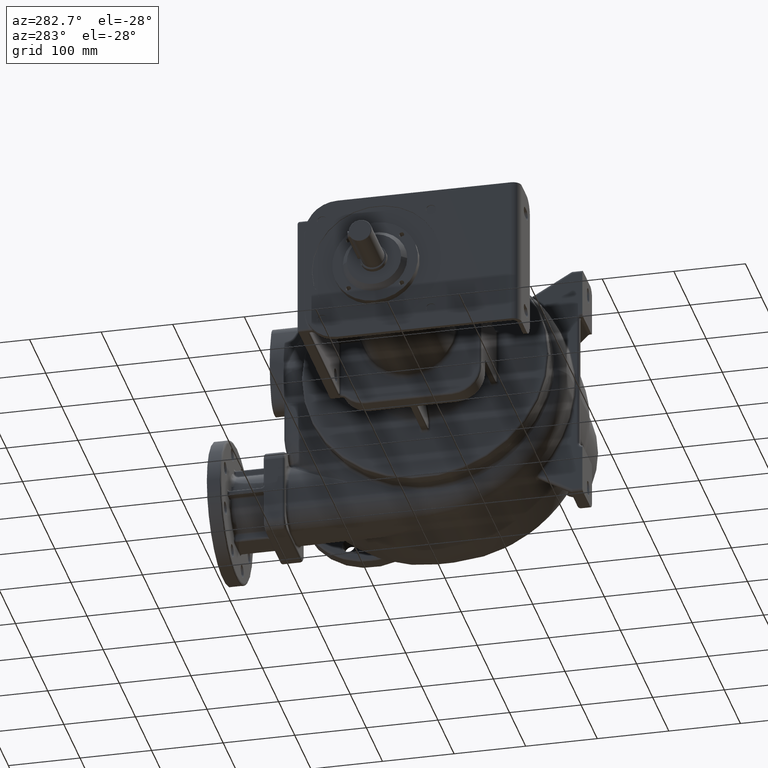
[diagram: clean part render]
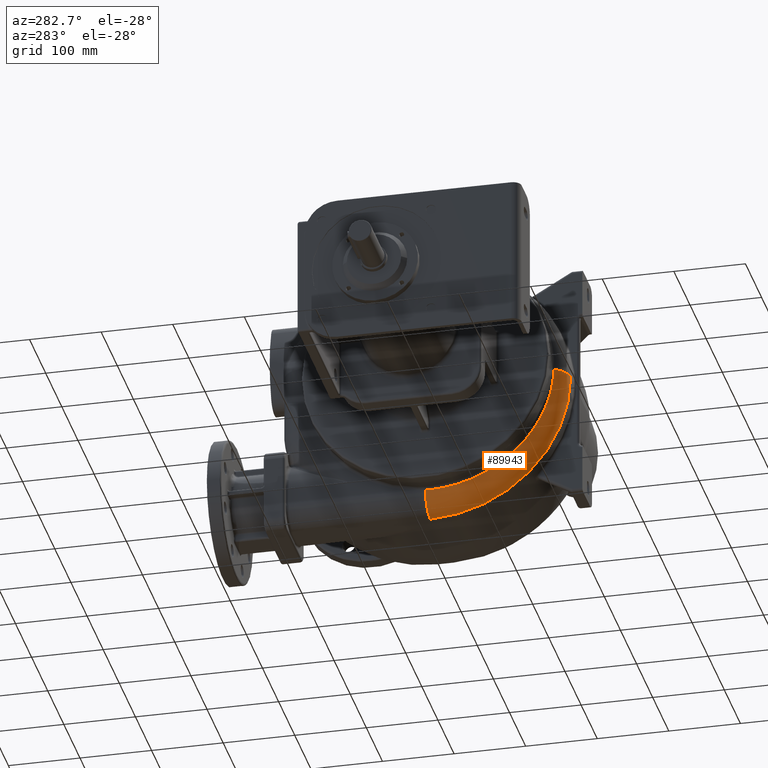
[diagram: same view with one face highlighted and labeled with its STEP entity id]
A machine part, auxiliary view. The second image highlights one B-rep face of the part: STEP entity #89943.
In plain terms, the highlighted toroidal blend (fillet) surface has major radius 166 mm and minor (blend) radius 30 mm.
Its self-contained STEP definition (entity closure, byte-faithful):
#5757=CARTESIAN_POINT('',(-8.999042080502E1,2.07E2,-1.737580632809E2));
#28155=CARTESIAN_POINT('',(-6.E1,4.1E1,-7.E0));
#28156=DIRECTION('',(0.E0,0.E0,1.E0));
#28157=DIRECTION('',(-8.994452377361E-1,-4.370334819139E-1,0.E0));
#28158=AXIS2_PLACEMENT_3D('',#28155,#28156,#28157);
#28160=CARTESIAN_POINT('',(-8.999042080502E1,2.07E2,-1.737580632809E2));
#28161=CARTESIAN_POINT('',(-8.998972283097E1,2.062231979715E2,
-1.737856764537E2));
#28162=CARTESIAN_POINT('',(-8.998824076054E1,2.046692257495E2,
-1.738304347924E2));
#28163=CARTESIAN_POINT('',(-8.998575000194E1,2.023375572966E2,
-1.738661567715E2));
#28164=CARTESIAN_POINT('',(-8.998390494195E1,2.007829372595E2,
-1.738690231923E2));
#28165=CARTESIAN_POINT('',(-8.998293474390E1,2.000056494918E2,
-1.738652192678E2));
#28167=CARTESIAN_POINT('',(-8.998293474390E1,2.000056494918E2,
-1.738652192678E2));
#28168=CARTESIAN_POINT('',(-8.998160868283E1,1.989431115503E2,
-1.738600065507E2));
#28169=CARTESIAN_POINT('',(-8.997878033822E1,1.968178898113E2,
-1.738299718109E2));
#28170=CARTESIAN_POINT('',(-8.997397978859E1,1.936305576913E2,
-1.737261443945E2));
#28171=CARTESIAN_POINT('',(-8.996859679774E1,1.904450934095E2,
-1.735636038834E2));
#28172=CARTESIAN_POINT('',(-8.996260652730E1,1.872627482284E2,
-1.733424189885E2));
#28173=CARTESIAN_POINT('',(-8.995598587847E1,1.840848036553E2,
-1.730626658132E2));
#28174=CARTESIAN_POINT('',(-8.994871374601E1,1.809125346424E2,
-1.727244274600E2));
#28175=CARTESIAN_POINT('',(-8.994077151337E1,1.777472135407E2,
-1.723277953281E2));
#28176=CARTESIAN_POINT('',(-8.993214460511E1,1.745901340602E2,
-1.718728655327E2));
#28177=CARTESIAN_POINT('',(-8.992281055131E1,1.714421727190E2,
-1.713598239776E2));
#28178=CARTESIAN_POINT('',(-8.991274667879E1,1.683041887809E2,
-1.707888524805E2));
#28179=CARTESIAN_POINT('',(-8.990193139507E1,1.651770207493E2,
-1.701601158566E2));
#28180=CARTESIAN_POINT('',(-8.989034481162E1,1.620616389395E2,
-1.694737970246E2));
#28181=CARTESIAN_POINT('',(-8.987796946461E1,1.589591669959E2,
-1.687301160352E2));
#28182=CARTESIAN_POINT('',(-8.986479001034E1,1.558706967561E2,
-1.679292953106E2));
#28183=CARTESIAN_POINT('',(-8.985079389653E1,1.527973280857E2,
-1.670715668378E2));
#28184=CARTESIAN_POINT('',(-8.983596093345E1,1.497402009437E2,
-1.661572937796E2));
#28185=CARTESIAN_POINT('',(-8.982027264927E1,1.467004472173E2,
-1.651868472473E2));
#28186=CARTESIAN_POINT('',(-8.980371304781E1,1.436792134623E2,
-1.641606139278E2));
#28187=CARTESIAN_POINT('',(-8.978626844512E1,1.406775544901E2,
-1.630789587535E2));
#28188=CARTESIAN_POINT('',(-8.976792780500E1,1.376964467976E2,
-1.619422204126E2));
#28189=CARTESIAN_POINT('',(-8.974868393087E1,1.347368857856E2,
-1.607507414901E2));
#28190=CARTESIAN_POINT('',(-8.972853297028E1,1.317998617460E2,
-1.595048693572E2));
#28191=CARTESIAN_POINT('',(-8.970745797434E1,1.288863171621E2,
-1.582050658290E2));
#28192=CARTESIAN_POINT('',(-8.968544487556E1,1.259971965416E2,
-1.568517880047E2));
#28193=CARTESIAN_POINT('',(-8.966248222196E1,1.231334379341E2,
-1.554454914015E2));
#28194=CARTESIAN_POINT('',(-8.963856214422E1,1.202960090695E2,
-1.539866460140E2));
#28195=CARTESIAN_POINT('',(-8.961368054156E1,1.174858961990E2,
-1.524757361055E2));
#28196=CARTESIAN_POINT('',(-8.958783803952E1,1.147040818396E2,
-1.509132445477E2));
#28197=CARTESIAN_POINT('',(-8.956103782102E1,1.119515431300E2,
-1.492996713123E2));
#28198=CARTESIAN_POINT('',(-8.953326776060E1,1.092292025661E2,
-1.476356208653E2));
#28199=CARTESIAN_POINT('',(-8.950452031369E1,1.065379832612E2,
-1.459216916370E2));
#28200=CARTESIAN_POINT('',(-8.947479127385E1,1.038788076830E2,
-1.441584893071E2));
#28201=CARTESIAN_POINT('',(-8.944408057355E1,1.012525799917E2,
-1.423466105401E2));
#28202=CARTESIAN_POINT('',(-8.941239229726E1,9.866019405781E1,
-1.404866499252E2));
#28203=CARTESIAN_POINT('',(-8.937973668214E1,9.610254840295E1,
-1.385792013616E2));
#28204=CARTESIAN_POINT('',(-8.934612507333E1,9.358052858560E1,
-1.366248796724E2));
#28205=CARTESIAN_POINT('',(-8.931155035199E1,9.109495619491E1,
-1.346243934537E2));
#28206=CARTESIAN_POINT('',(-8.927601166831E1,8.864665717494E1,
-1.325784424462E2));
#28207=CARTESIAN_POINT('',(-8.923951187504E1,8.623645357616E1,
-1.304877311196E2));
#28208=CARTESIAN_POINT('',(-8.920205894310E1,8.386516629978E1,
-1.283529649154E2));
#28209=CARTESIAN_POINT('',(-8.916366556214E1,8.153361304641E1,
-1.261748536272E2));
#28210=CARTESIAN_POINT('',(-8.912435192215E1,7.924261518511E1,
-1.239541047133E2));
#28211=CARTESIAN_POINT('',(-8.908413706202E1,7.699297231296E1,
-1.216914512316E2));
#28212=CARTESIAN_POINT('',(-8.904301944708E1,7.478541067155E1,
-1.193877034572E2));
#28213=CARTESIAN_POINT('',(-8.900100550888E1,7.262066356186E1,
-1.170436628698E2));
#28214=CARTESIAN_POINT('',(-8.895810580568E1,7.049945836609E1,
-1.146601348080E2));
#28215=CARTESIAN_POINT('',(-8.891433696574E1,6.842252666542E1,
-1.122379319750E2));
#28216=CARTESIAN_POINT('',(-8.886972076800E1,6.639059547091E1,
-1.097778724653E2));
#28217=CARTESIAN_POINT('',(-8.882428814682E1,6.440439968546E1,
-1.072807759647E2));
#28218=CARTESIAN_POINT('',(-8.877806522960E1,6.246462650751E1,
-1.047474729838E2));
#28219=CARTESIAN_POINT('',(-8.873105502938E1,6.057185226959E1,
-1.021788087994E2));
#28220=CARTESIAN_POINT('',(-8.868327034721E1,5.872667289704E1,
-9.957562643070E1));
#28221=CARTESIAN_POINT('',(-8.863472832524E1,5.692967589361E1,
-9.693876113899E1));
#28222=CARTESIAN_POINT('',(-8.858545547260E1,5.518154031249E1,
-9.426918401947E1));
#28223=CARTESIAN_POINT('',(-8.853548368251E1,5.348293294412E1,
-9.156787548558E1));
#28224=CARTESIAN_POINT('',(-8.848485718685E1,5.183454078670E1,
-8.883584490934E1));
#28225=CARTESIAN_POINT('',(-8.843360124268E1,5.023688841031E1,
-8.607398882962E1));
#28226=CARTESIAN_POINT('',(-8.838172588464E1,4.869038902777E1,
-8.328311638580E1));
#28227=CARTESIAN_POINT('',(-8.832925082686E1,4.719547078848E1,
-8.046401539121E1));
#28228=CARTESIAN_POINT('',(-8.827620426594E1,4.575265232950E1,
-7.761763765197E1));
#28229=CARTESIAN_POINT('',(-8.822262367904E1,4.436252946991E1,
-7.474511362434E1));
#28230=CARTESIAN_POINT('',(-8.816855733426E1,4.302568883092E1,
-7.184757714102E1));
#28231=CARTESIAN_POINT('',(-8.811404161152E1,4.174259263952E1,
-6.892603570131E1));
#28232=CARTESIAN_POINT('',(-8.805909192009E1,4.051355163945E1,
-6.598130657185E1));
#28233=CARTESIAN_POINT('',(-8.800373439925E1,3.933890149438E1,
-6.301419866367E1));
#28234=CARTESIAN_POINT('',(-8.794800579422E1,3.821908779045E1,
-6.002579956689E1));
#28235=CARTESIAN_POINT('',(-8.789195249447E1,3.715458290706E1,
-5.701730805003E1));
#28236=CARTESIAN_POINT('',(-8.783562650253E1,3.614582333109E1,
-5.398989114088E1));
#28237=CARTESIAN_POINT('',(-8.777905030763E1,3.519306093228E1,
-5.094442950246E1));
#28238=CARTESIAN_POINT('',(-8.772225333506E1,3.429655187074E1,
-4.788176942460E1));
#28239=CARTESIAN_POINT('',(-8.766527532548E1,3.345662283871E1,
-4.480299245309E1));
#28240=CARTESIAN_POINT('',(-8.760816828576E1,3.267362971785E1,
-4.170931419288E1));
#28241=CARTESIAN_POINT('',(-8.755097863288E1,3.194785550106E1,
-3.860183303725E1));
#28242=CARTESIAN_POINT('',(-8.749373143886E1,3.127946846001E1,
-3.548139781803E1));
#28243=CARTESIAN_POINT('',(-8.743646527627E1,3.066868883241E1,
-3.234900671162E1));
#28244=CARTESIAN_POINT('',(-8.737923370722E1,3.011580577012E1,
-2.920607966195E1));
#28245=CARTESIAN_POINT('',(-8.732209212592E1,2.962104760093E1,
-2.605392231536E1));
#28246=CARTESIAN_POINT('',(-8.726507224487E1,2.918451844440E1,
-2.289345773223E1));
#28247=CARTESIAN_POINT('',(-8.720821420993E1,2.880633642726E1,
-1.972564565948E1));
#28248=CARTESIAN_POINT('',(-8.715156708951E1,2.848662483166E1,
-1.655142717912E1));
#28249=CARTESIAN_POINT('',(-8.709517326580E1,2.822548371777E1,
-1.337178423281E1));
#28250=CARTESIAN_POINT('',(-8.703906614276E1,2.802298059803E1,
-1.018776651050E1));
#28251=CARTESIAN_POINT('',(-8.700188281387E1,2.792712356220E1,
-8.062835595256E0));
#28252=CARTESIAN_POINT('',(-8.698335713208E1,2.788899554258E1,
-6.999999999993E0));
#28254=CARTESIAN_POINT('',(-6.E1,2.07E2,-1.73E2));
#28255=DIRECTION('',(0.E0,-1.E0,0.E0));
#28256=DIRECTION('',(-9.996806935006E-1,0.E0,-2.526877603156E-2));
#28257=AXIS2_PLACEMENT_3D('',#28254,#28255,#28256);
#37817=CARTESIAN_POINT('',(-6.E1,2.07E2,-7.E0));
#37818=DIRECTION('',(-1.E0,0.E0,0.E0));
#37819=DIRECTION('',(0.E0,0.E0,-1.E0));
#37820=AXIS2_PLACEMENT_3D('',#37817,#37818,#37819);
#43926=CARTESIAN_POINT('',(-6.E1,2.07E2,-2.03E2));
#43927=CARTESIAN_POINT('',(-6.E1,1.1E1,-7.E0));
#43928=VERTEX_POINT('',#43926);
#43929=VERTEX_POINT('',#43927);
#44059=VERTEX_POINT('',#5757);
#44062=VERTEX_POINT('',#28165);
#44064=VERTEX_POINT('',#28252);
#89928=CARTESIAN_POINT('',(-6.E1,2.07E2,-7.E0));
#89929=DIRECTION('',(1.E0,0.E0,0.E0));
#89930=DIRECTION('',(0.E0,5.497966072878E-3,-9.999848860703E-1));
#89931=AXIS2_PLACEMENT_3D('',#89928,#89929,#89930);
#89932=TOROIDAL_SURFACE('',#89931,1.66E2,3.E1);
#89934=ORIENTED_EDGE('',*,*,#89933,.T.);
#89936=ORIENTED_EDGE('',*,*,#89935,.T.);
#89937=ORIENTED_EDGE('',*,*,#89923,.T.);
#89939=ORIENTED_EDGE('',*,*,#89938,.F.);
#89940=ORIENTED_EDGE('',*,*,#54165,.F.);
#89941=EDGE_LOOP('',(#89934,#89936,#89937,#89939,#89940));
#89942=FACE_OUTER_BOUND('',#89941,.F.);
#89943=ADVANCED_FACE('',(#89942),#89932,.T.);
#28159=CIRCLE('',#28158,3.E1);
#28166=B_SPLINE_CURVE_WITH_KNOTS('',3,(#28160,#28161,#28162,#28163,#28164,
#28165),.UNSPECIFIED.,.F.,.F.,(4,1,1,4),(0.E0,3.333333333333E-1,
6.666666666667E-1,1.E0),.UNSPECIFIED.);
#28253=B_SPLINE_CURVE_WITH_KNOTS('',3,(#28167,#28168,#28169,#28170,#28171,
#28172,#28173,#28174,#28175,#28176,#28177,#28178,#28179,#28180,#28181,#28182,
#28183,#28184,#28185,#28186,#28187,#28188,#28189,#28190,#28191,#28192,#28193,
#28194,#28195,#28196,#28197,#28198,#28199,#28200,#28201,#28202,#28203,#28204,
#28205,#28206,#28207,#28208,#28209,#28210,#28211,#28212,#28213,#28214,#28215,
#28216,#28217,#28218,#28219,#28220,#28221,#28222,#28223,#28224,#28225,#28226,
#28227,#28228,#28229,#28230,#28231,#28232,#28233,#28234,#28235,#28236,#28237,
#28238,#28239,#28240,#28241,#28242,#28243,#28244,#28245,#28246,#28247,#28248,
#28249,#28250,#28251,#28252),.UNSPECIFIED.,.F.,.F.,(4,1,1,1,1,1,1,1,1,1,1,1,1,1,
1,1,1,1,1,1,1,1,1,1,1,1,1,1,1,1,1,1,1,1,1,1,1,1,1,1,1,1,1,1,1,1,1,1,1,1,1,1,1,1,
1,1,1,1,1,1,1,1,1,1,1,1,1,1,1,1,1,1,1,1,1,1,1,1,1,1,1,1,1,4),(0.E0,
1.204819277108E-2,2.409638554217E-2,3.614457831325E-2,4.819277108434E-2,
6.024096385542E-2,7.228915662651E-2,8.433734939759E-2,9.638554216867E-2,
1.084337349398E-1,1.204819277108E-1,1.325301204819E-1,1.445783132530E-1,
1.566265060241E-1,1.686746987952E-1,1.807228915663E-1,1.927710843373E-1,
2.048192771084E-1,2.168674698795E-1,2.289156626506E-1,2.409638554217E-1,
2.530120481928E-1,2.650602409639E-1,2.771084337349E-1,2.891566265060E-1,
3.012048192771E-1,3.132530120482E-1,3.253012048193E-1,3.373493975904E-1,
3.493975903614E-1,3.614457831325E-1,3.734939759036E-1,3.855421686747E-1,
3.975903614458E-1,4.096385542169E-1,4.216867469880E-1,4.337349397590E-1,
4.457831325301E-1,4.578313253012E-1,4.698795180723E-1,4.819277108434E-1,
4.939759036145E-1,5.060240963855E-1,5.180722891566E-1,5.301204819277E-1,
5.421686746988E-1,5.542168674699E-1,5.662650602410E-1,5.783132530120E-1,
5.903614457831E-1,6.024096385542E-1,6.144578313253E-1,6.265060240964E-1,
6.385542168675E-1,6.506024096386E-1,6.626506024096E-1,6.746987951807E-1,
6.867469879518E-1,6.987951807229E-1,7.108433734940E-1,7.228915662651E-1,
7.349397590361E-1,7.469879518072E-1,7.590361445783E-1,7.710843373494E-1,
7.831325301205E-1,7.951807228916E-1,8.072289156627E-1,8.192771084337E-1,
8.313253012048E-1,8.433734939759E-1,8.554216867470E-1,8.674698795181E-1,
8.795180722892E-1,8.915662650602E-1,9.036144578313E-1,9.156626506024E-1,
9.277108433735E-1,9.397590361446E-1,9.518072289157E-1,9.638554216867E-1,
9.759036144578E-1,9.879518072289E-1,1.E0),.UNSPECIFIED.);
#28258=CIRCLE('',#28257,3.E1);
#37821=CIRCLE('',#37820,1.96E2);
#54165=EDGE_CURVE('',#44059,#43928,#28258,.T.);
#89923=EDGE_CURVE('',#44064,#43929,#28159,.T.);
#89933=EDGE_CURVE('',#44059,#44062,#28166,.T.);
#89935=EDGE_CURVE('',#44062,#44064,#28253,.T.);
#89938=EDGE_CURVE('',#43928,#43929,#37821,.T.);